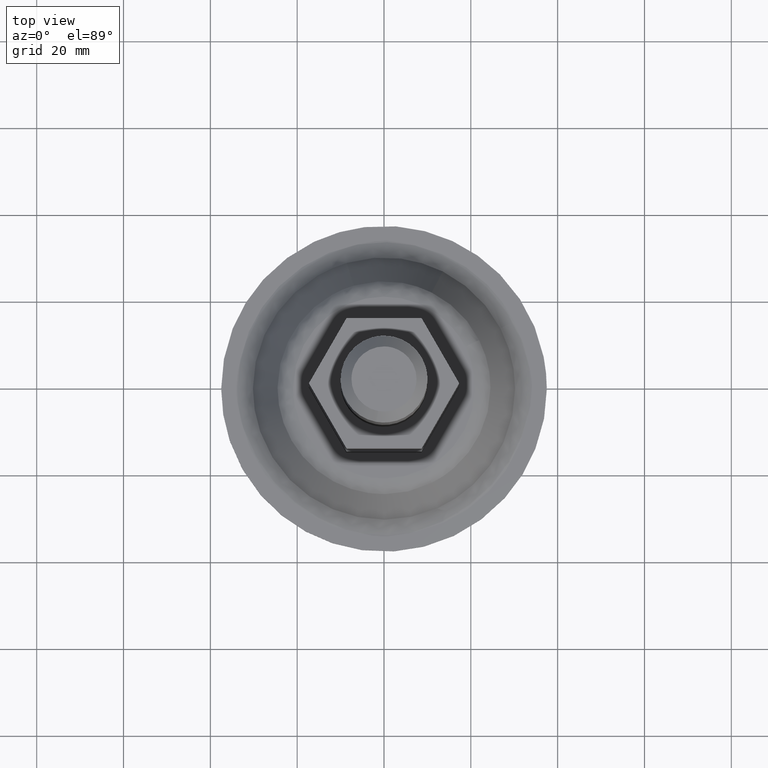
[diagram: clean part render]
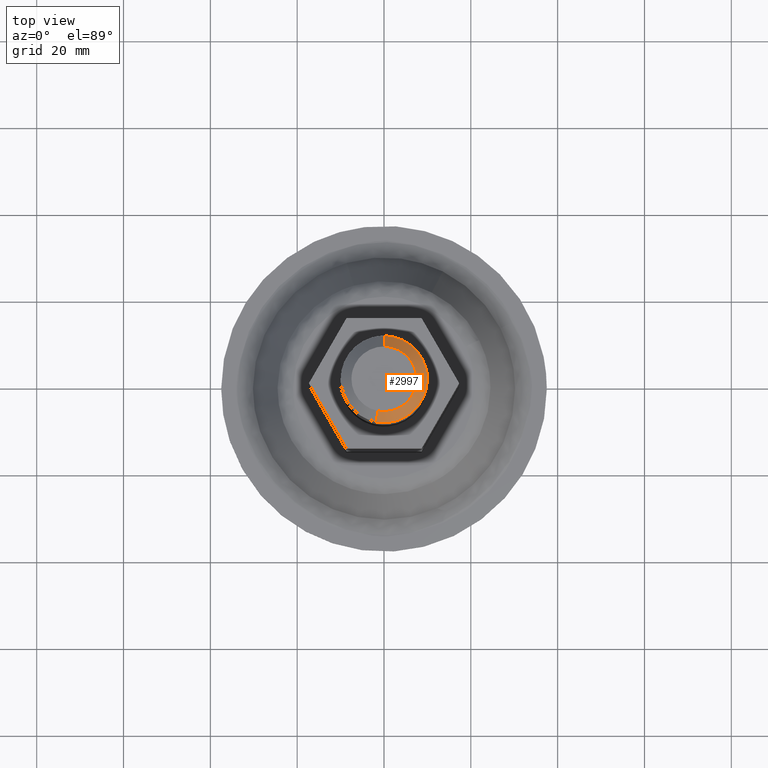
[diagram: same view with one face highlighted and labeled with its STEP entity id]
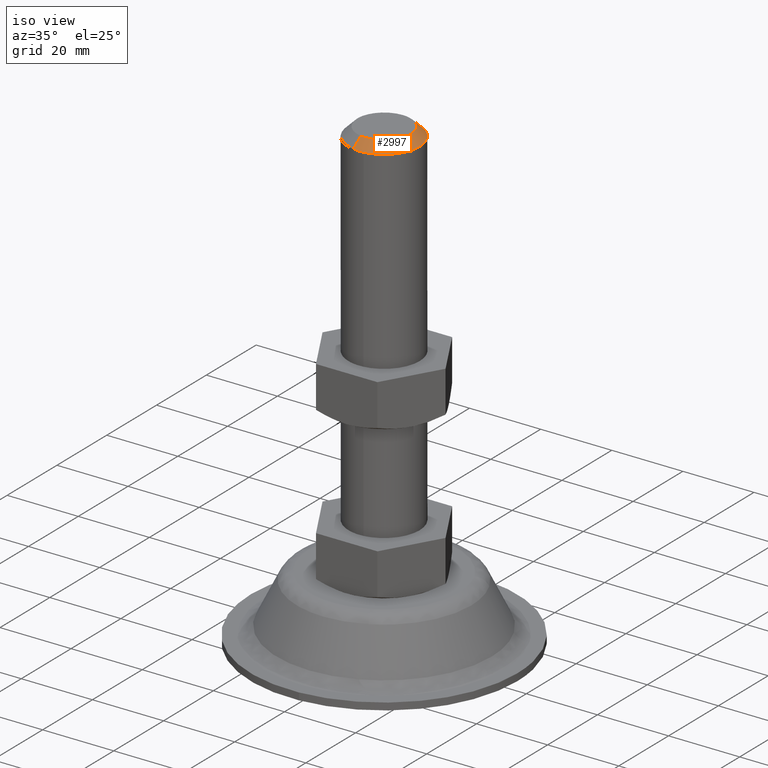
[diagram: same view with one face highlighted and labeled with its STEP entity id]
A machine part, top view. The second image highlights one B-rep face of the part: STEP entity #2997.
A second angle (iso view) of the same face is appended — the face is thin or edge-on in the first view.
In plain terms, the highlighted face is a freeform B-spline surface patch.
Its self-contained STEP definition (entity closure, byte-faithful):
#2800=CARTESIAN_POINT('',(-1.831236289819837,-9.830898923867482,128.499999999977400));
#2801=VERTEX_POINT('',#2800);
#2817=CARTESIAN_POINT('',(-1.373427217436515,-7.373174192895677,130.999999999974790));
#2818=VERTEX_POINT('',#2817);
#2819=CARTESIAN_POINT('',(-1.373427217436515,-7.373174192895677,130.999999999974790));
#2820=CARTESIAN_POINT('',(-1.831236289819837,-9.830898923867482,128.499999999977400));
#2821=QUASI_UNIFORM_CURVE('',1,(#2819,#2820),.UNSPECIFIED.,.F.,.U.);
#2822=EDGE_CURVE('',#2818,#2801,#2821,.T.);
#2839=CARTESIAN_POINT('',(0.065449017014884,7.499714423080363,130.999999999894190));
#2840=VERTEX_POINT('',#2839);
#2856=CARTESIAN_POINT('',(0.087265355858830,9.999619230753307,128.499999999880710));
#2857=VERTEX_POINT('',#2856);
#2858=CARTESIAN_POINT('',(0.065449017014884,7.499714423080363,130.999999999894190));
#2859=CARTESIAN_POINT('',(0.087265355858830,9.999619230753307,128.499999999880710));
#2860=QUASI_UNIFORM_CURVE('',1,(#2858,#2859),.UNSPECIFIED.,.F.,.U.);
#2861=EDGE_CURVE('',#2840,#2857,#2860,.T.);
#2896=CARTESIAN_POINT('',(0.064903607769156,7.437216802789736,131.062500000000000));
#2897=CARTESIAN_POINT('',(7.502120410558892,7.372313195020581,131.062500000000030));
#2898=CARTESIAN_POINT('',(7.437216802789736,-0.064903607769156,131.062500000000000));
#2899=CARTESIAN_POINT('',(7.372313195020581,-7.502120410558892,131.062500000000030));
#2900=CARTESIAN_POINT('',(-0.064903607769156,-7.437216802789736,131.062500000000000));
#2901=CARTESIAN_POINT('',(-0.718960644387130,-7.431508933503556,131.062499999999970));
#2902=CARTESIAN_POINT('',(-1.361981990414002,-7.311731074635292,131.062500000000030));
#2903=CARTESIAN_POINT('',(0.087824398664103,10.063679291337969,128.435937499999990));
#2904=CARTESIAN_POINT('',(10.151503690002077,9.975854892673869,128.435937499999970));
#2905=CARTESIAN_POINT('',(10.063679291337969,-0.087824398664103,128.435937499999990));
#2906=CARTESIAN_POINT('',(9.975854892673869,-10.151503690002077,128.435937499999970));
#2907=CARTESIAN_POINT('',(-0.087824398664103,-10.063679291337969,128.435937499999990));
#2908=CARTESIAN_POINT('',(-0.972862502205360,-10.055955680818585,128.435937500000020));
#2909=CARTESIAN_POINT('',(-1.842967647112730,-9.893878120110497,128.435937499999910));
#2917=(BOUNDED_SURFACE()B_SPLINE_SURFACE(2,1,((#2896,#2903),(#2897,#2904),(#2898,#2905),(#2899,#2906),(#2900,#2907),(#2901,#2908),(#2902,#2909)),.UNSPECIFIED.,.F.,.F.,.U.)B_SPLINE_SURFACE_WITH_KNOTS((3,2,2,3),(2,2),(0.0,16.674684720281839,33.349369440563677,35.350331606997507),(0.0,3.714520309920634),.UNSPECIFIED.)GEOMETRIC_REPRESENTATION_ITEM()RATIONAL_B_SPLINE_SURFACE(((1.0,1.0),(0.707106781186548,0.707106781186548),(1.0,1.0),(0.707106781186548,0.707106781186548),(1.0,1.0),(0.964852813742386,0.964852813742386),(0.938140952186599,0.938140952186599)))REPRESENTATION_ITEM('')SURFACE());
#2918=CARTESIAN_POINT('',(1.180342346617756,-9.930095263630699,128.500000000000000));
#2919=VERTEX_POINT('',#2918);
#2920=CARTESIAN_POINT('',(1.180342346617757,-9.930095263630699,128.500000000000000));
#2921=CARTESIAN_POINT('',(0.592241196569803,-10.0,128.500000000000000));
#2922=CARTESIAN_POINT('',(0.0,-10.0,128.500000000000000));
#2923=CARTESIAN_POINT('',(-0.923425759485023,-10.000000000000002,128.500000000000000));
#2924=CARTESIAN_POINT('',(-1.831236289819837,-9.830898923867482,128.499999999977350));
#2932=(BOUNDED_CURVE()B_SPLINE_CURVE(2,(#2920,#2921,#2922,#2923,#2924),.UNSPECIFIED.,.F.,.U.)B_SPLINE_CURVE_WITH_KNOTS((3,2,3),(0.229562473513936,0.250000000000000,0.281445263719383),.UNSPECIFIED.)CURVE()GEOMETRIC_REPRESENTATION_ITEM()RATIONAL_B_SPLINE_CURVE((0.956026754184538,0.976055948331647,1.0,0.963159581971168,0.935586817225928))REPRESENTATION_ITEM(''));
#2933=EDGE_CURVE('',#2919,#2801,#2932,.T.);
#2934=ORIENTED_EDGE('',*,*,#2933,.F.);
#2935=CARTESIAN_POINT('',(10.0,0.0,128.500000000000000));
#2936=VERTEX_POINT('',#2935);
#2937=CARTESIAN_POINT('',(10.0,0.0,128.500000000000000));
#2938=CARTESIAN_POINT('',(10.0,-8.881745259423289,128.500000000000000));
#2939=CARTESIAN_POINT('',(1.180342346617757,-9.930095263630699,128.500000000000060));
#2947=(BOUNDED_CURVE()B_SPLINE_CURVE(2,(#2937,#2938,#2939),.UNSPECIFIED.,.F.,.U.)B_SPLINE_CURVE_WITH_KNOTS((3,3),(0.0,0.229562473513936),.UNSPECIFIED.)CURVE()GEOMETRIC_REPRESENTATION_ITEM()RATIONAL_B_SPLINE_CURVE((1.0,0.731050832854901,0.956026754184538))REPRESENTATION_ITEM(''));
#2948=EDGE_CURVE('',#2936,#2919,#2947,.T.);
#2949=ORIENTED_EDGE('',*,*,#2948,.F.);
#2950=CARTESIAN_POINT('',(0.087265355858830,9.999619230753307,128.499999999880710));
#2951=CARTESIAN_POINT('',(10.0,9.913112104216737,128.499999999999970));
#2952=CARTESIAN_POINT('',(10.0,0.0,128.500000000000000));
#2960=(BOUNDED_CURVE()B_SPLINE_CURVE(2,(#2950,#2951,#2952),.UNSPECIFIED.,.F.,.U.)B_SPLINE_CURVE_WITH_KNOTS((3,3),(0.751539894365780,1.0),.UNSPECIFIED.)CURVE()GEOMETRIC_REPRESENTATION_ITEM()RATIONAL_B_SPLINE_CURVE((0.996414028029143,0.708910879656251,1.0))REPRESENTATION_ITEM(''));
#2961=EDGE_CURVE('',#2857,#2936,#2960,.T.);
#2962=ORIENTED_EDGE('',*,*,#2961,.F.);
#2963=ORIENTED_EDGE('',*,*,#2861,.F.);
#2964=CARTESIAN_POINT('',(7.500000000000000,0.0,131.0));
#2965=VERTEX_POINT('',#2964);
#2966=CARTESIAN_POINT('',(7.500000000000000,0.0,131.0));
#2967=CARTESIAN_POINT('',(7.500000000000000,7.434834077923381,131.0));
#2968=CARTESIAN_POINT('',(0.065449017014884,7.499714423080363,130.999999999894210));
#2976=(BOUNDED_CURVE()B_SPLINE_CURVE(2,(#2966,#2967,#2968),.UNSPECIFIED.,.F.,.U.)B_SPLINE_CURVE_WITH_KNOTS((3,3),(0.500000000000000,0.748460105628554),.UNSPECIFIED.)CURVE()GEOMETRIC_REPRESENTATION_ITEM()RATIONAL_B_SPLINE_CURVE((1.0,0.708910879662890,0.996414028016030))REPRESENTATION_ITEM(''));
#2977=EDGE_CURVE('',#2965,#2840,#2976,.T.);
#2978=ORIENTED_EDGE('',*,*,#2977,.F.);
#2979=CARTESIAN_POINT('',(-1.373427217436515,-7.373174192895678,130.999999999974730));
#2980=CARTESIAN_POINT('',(-0.692569319685712,-7.499999999999999,131.000000000000060));
#2981=CARTESIAN_POINT('',(0.0,-7.500000000000000,131.0));
#2982=CARTESIAN_POINT('',(7.500000000000000,-7.500000000000000,131.0));
#2983=CARTESIAN_POINT('',(7.500000000000000,0.0,131.0));
#2991=(BOUNDED_CURVE()B_SPLINE_CURVE(2,(#2979,#2980,#2981,#2982,#2983),.UNSPECIFIED.,.F.,.U.)B_SPLINE_CURVE_WITH_KNOTS((3,2,3),(0.218554736277471,0.250000000000000,0.500000000000000),.UNSPECIFIED.)CURVE()GEOMETRIC_REPRESENTATION_ITEM()RATIONAL_B_SPLINE_CURVE((0.935586817220410,0.963159581967482,1.0,0.707106781186547,1.0))REPRESENTATION_ITEM(''));
#2992=EDGE_CURVE('',#2818,#2965,#2991,.T.);
#2993=ORIENTED_EDGE('',*,*,#2992,.F.);
#2994=ORIENTED_EDGE('',*,*,#2822,.T.);
#2995=EDGE_LOOP('',(#2934,#2949,#2962,#2963,#2978,#2993,#2994));
#2996=FACE_OUTER_BOUND('',#2995,.T.);
#2997=ADVANCED_FACE('',(#2996),#2917,.T.);